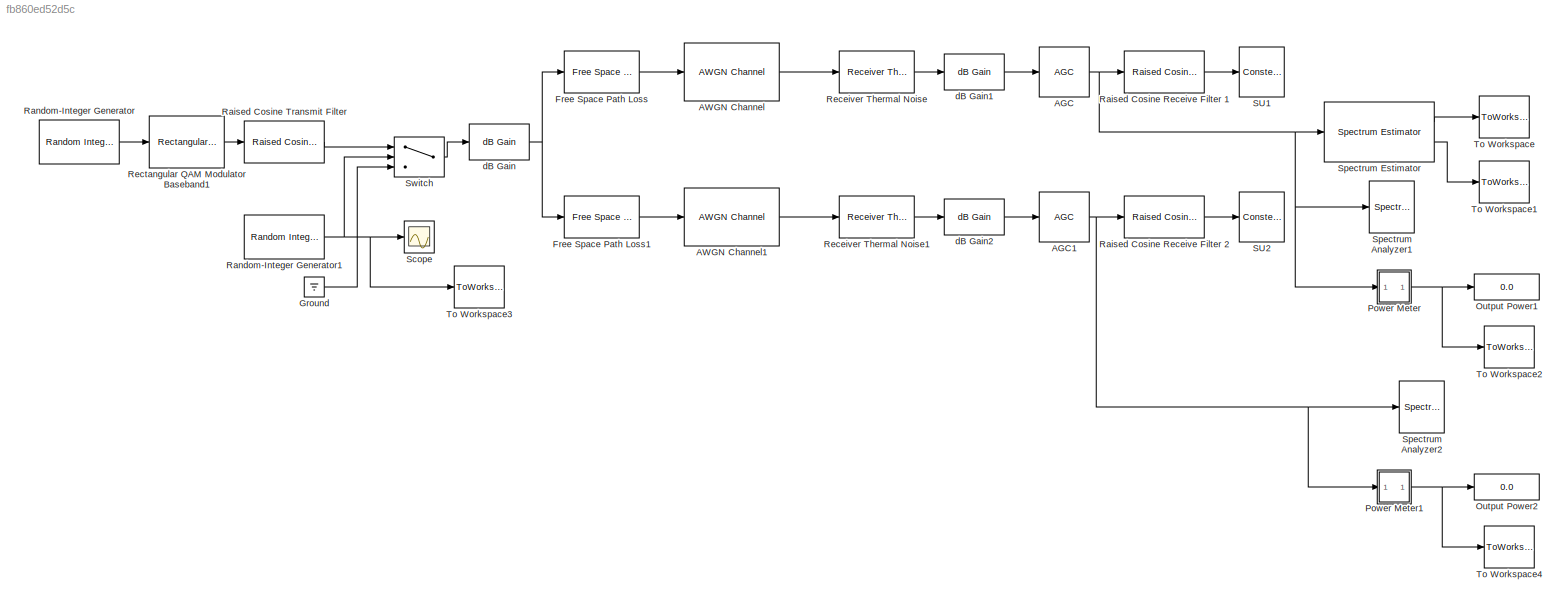
MODEL slx_fb860ed52d5c
KIND model
CONFIG AbsTol = auto
CONFIG EnableMultiTasking = on
CONFIG FixedStep = auto
CONFIG MaxStep = auto
CONFIG MinStep = auto
CONFIG RelTol = 1e-3
CONFIG SampleTimeConstraint = Unconstrained
CONFIG Solver = ode45
CONFIG SolverName = ode45
CONFIG StartTime = 0.0
CONFIG StopTime = inf
BLOCK [Reference] AGC  REF=commrfcorlib/AGC
  Ports = [1, 1]
  SourceBlock = commrfcorlib/AGC
  SourceProductBaseCode = CM
  SourceProductName = Communications System Toolbox
  SourceType = AGC
BLOCK [Reference] AGC1  REF=commrfcorlib/AGC
  Ports = [1, 1]
  SourceBlock = commrfcorlib/AGC
  SourceProductBaseCode = CM
  SourceProductName = Communications System Toolbox
  SourceType = AGC
BLOCK [Reference] AWGN Channel  REF=commchan3/AWGN
Channel
  Ports = [1, 1]
  SourceBlock = commchan3/AWGN\nChannel
  SourceProductBaseCode = CM
  SourceProductName = Communications System Toolbox
  SourceType = AWGN Channel
  UserDataPersistent = on
BLOCK [Reference] AWGN Channel1  REF=commchan3/AWGN
Channel
  Ports = [1, 1]
  SourceBlock = commchan3/AWGN\nChannel
  SourceProductBaseCode = CM
  SourceProductName = Communications System Toolbox
  SourceType = AWGN Channel
  UserDataPersistent = on
BLOCK [Reference] Free Space Path Loss  REF=commrflib2/Free Space
Path Loss
  Ports = [1, 1]
  SourceBlock = commrflib2/Free Space\nPath Loss
  SourceProductBaseCode = CM
  SourceProductName = Communications System Toolbox
  SourceType = Free Space Path Loss
BLOCK [Reference] Free Space Path Loss1  REF=commrflib2/Free Space
Path Loss
  Ports = [1, 1]
  SourceBlock = commrflib2/Free Space\nPath Loss
  SourceProductBaseCode = CM
  SourceProductName = Communications System Toolbox
  SourceType = Free Space Path Loss
BLOCK [Ground] Ground
BLOCK [Display] Output Power1
  Decimation = 1
  Ports = [1]
BLOCK [Display] Output Power2
  Decimation = 1
  Ports = [1]
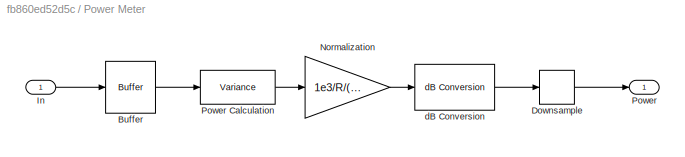
BLOCK [SubSystem] Power Meter
  Ports = [1, 1]
  RequestExecContextInheritance = off
  Variant = off
BLOCK [Buffer] Power Meter/Buffer
  N = buffer_sz
BLOCK [DownSample] Power Meter/Downsample
  N = 10
  RateOptions = Allow multirate processing
  UserDataPersistent = on
BLOCK [Inport] Power Meter/In
  IconDisplay = Port number
BLOCK [Gain] Power Meter/Normalization
  Gain = 1e3/R/(1+PB)
  OutDataTypeStr = Inherit: Inherit via internal rule
  ParamDataTypeStr = Inherit: Inherit via internal rule
  SaturateOnIntegerOverflow = off
BLOCK [Outport] Power Meter/Power
  IconDisplay = Port number
BLOCK [Reference] Power Meter/Power Calculation  REF=dspstat3/Variance
  Ports = [1, 1]
  SourceBlock = dspstat3/Variance
  SourceProductBaseCode = DS
  SourceProductName = DSP System Toolbox
  SourceType = Variance
  UserDataPersistent = on
BLOCK [Reference] Power Meter/dB Conversion  REF=dspmathops/dB Conversion
  Ports = [1, 1]
  SourceBlock = dspmathops/dB Conversion
  SourceProductBaseCode = DS
  SourceProductName = DSP System Toolbox
  SourceType = dB Conversion
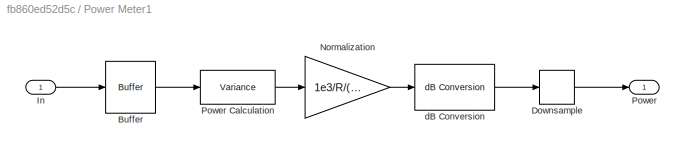
BLOCK [SubSystem] Power Meter1
  Ports = [1, 1]
  RequestExecContextInheritance = off
  Variant = off
BLOCK [Buffer] Power Meter1/Buffer
  N = buffer_sz
BLOCK [DownSample] Power Meter1/Downsample
  N = 10
  RateOptions = Allow multirate processing
  UserDataPersistent = on
BLOCK [Inport] Power Meter1/In
  IconDisplay = Port number
BLOCK [Gain] Power Meter1/Normalization
  Gain = 1e3/R/(1+PB)
  OutDataTypeStr = Inherit: Inherit via internal rule
  ParamDataTypeStr = Inherit: Inherit via internal rule
  SaturateOnIntegerOverflow = off
BLOCK [Outport] Power Meter1/Power
  IconDisplay = Port number
BLOCK [Reference] Power Meter1/Power Calculation  REF=dspstat3/Variance
  Ports = [1, 1]
  SourceBlock = dspstat3/Variance
  SourceProductBaseCode = DS
  SourceProductName = DSP System Toolbox
  SourceType = Variance
  UserDataPersistent = on
BLOCK [Reference] Power Meter1/dB Conversion  REF=dspmathops/dB Conversion
  Ports = [1, 1]
  SourceBlock = dspmathops/dB Conversion
  SourceProductBaseCode = DS
  SourceProductName = DSP System Toolbox
  SourceType = dB Conversion
BLOCK [Reference] Raised Cosine Receive Filter 1  REF=commfilt2/Raised Cosine
Receive Filter
  Ports = [1, 1]
  SourceBlock = commfilt2/Raised Cosine\nReceive Filter
  SourceProductBaseCode = CM
  SourceProductName = Communications System Toolbox
  SourceType = Raised Cosine Receive Filter
BLOCK [Reference] Raised Cosine Receive Filter 2  REF=commfilt2/Raised Cosine
Receive Filter
  Ports = [1, 1]
  SourceBlock = commfilt2/Raised Cosine\nReceive Filter
  SourceProductBaseCode = CM
  SourceProductName = Communications System Toolbox
  SourceType = Raised Cosine Receive Filter
BLOCK [Reference] Raised Cosine Transmit Filter  REF=commfilt2/Raised Cosine
Transmit Filter
  Ports = [1, 1]
  SourceBlock = commfilt2/Raised Cosine\nTransmit Filter
  SourceProductBaseCode = CM
  SourceProductName = Communications System Toolbox
  SourceType = Raised Cosine Transmit Filter
BLOCK [Reference] Random-Integer Generator  REF=commrandsrc2/Random Integer
Generator
  Ports = [0, 1]
  SourceBlock = commrandsrc2/Random Integer\nGenerator
  SourceType = Random Integer Generator
BLOCK [Reference] Random-Integer Generator1  REF=commrandsrc2/Random Integer
Generator
  Ports = [0, 1]
  SourceBlock = commrandsrc2/Random Integer\nGenerator
  SourceType = Random Integer Generator
BLOCK [Reference] Receiver Thermal Noise  REF=commrflib2/Receiver
Thermal Noise
  Ports = [1, 1]
  SourceBlock = commrflib2/Receiver\nThermal Noise
  SourceProductBaseCode = CM
  SourceProductName = Communications System Toolbox
  SourceType = Receiver Thermal Noise
BLOCK [Reference] Receiver Thermal Noise1  REF=commrflib2/Receiver
Thermal Noise
  Ports = [1, 1]
  SourceBlock = commrflib2/Receiver\nThermal Noise
  SourceProductBaseCode = CM
  SourceProductName = Communications System Toolbox
  SourceType = Receiver Thermal Noise
BLOCK [Reference] Rectangular QAM Modulator Baseband1  REF=commdigbbndam3/Rectangular QAM
Modulator
Baseband
  Ports = [1, 1]
  SourceBlock = commdigbbndam3/Rectangular QAM\nModulator\nBaseband
  SourceProductBaseCode = CM
  SourceProductName = Communications System Toolbox
  SourceType = Rectangular QAM Modulator Baseband
BLOCK [ConstellationDiagram] SU1
  Ports = [1]
  ScopeSpecificationString = comm.scopes.ConstellationDiagramBlockCfg('CurrentConfiguration', extmgr.ConfigurationSet(extmgr.Configuration('Core','General UI',true),extmgr.Configuration('Core','Source UI',true),extmgr.Configuration('Sources','WiredSimulink',true),extmgr.Configuration('Sources','Simulink',false),extmgr.Configuration('Sources','SimulinkEvent',false),extmgr.Configuration('Sources','Workspace',false),extmgr.Confi...<+2446ch>
  Tag = ScatterPlot
BLOCK [ConstellationDiagram] SU2
  Ports = [1]
  ScopeSpecificationString = comm.scopes.ConstellationDiagramBlockCfg('CurrentConfiguration', extmgr.ConfigurationSet(extmgr.Configuration('Core','General UI',true),extmgr.Configuration('Core','Source UI',true),extmgr.Configuration('Sources','WiredSimulink',true),extmgr.Configuration('Sources','Simulink',false),extmgr.Configuration('Sources','Streaming',false),extmgr.Configuration('Sources','SimulinkEvent',false),extmgr.Confi...<+2446ch>
  Tag = ScatterPlot
BLOCK [Scope] Scope
  NumInputPorts = 1
  Ports = [1]
  ScopeSpecificationString = Simulink.scopes.TimeScopeBlockCfg('CurrentConfiguration', extmgr.ConfigurationSet(extmgr.Configuration('Core','General UI',true),extmgr.Configuration('Core','Source UI',true),extmgr.Configuration('Sources','WiredSimulink',true,'DataLoggingLimitDataPoints',true,'DataLoggingSaveFormat','Array','DataLoggingDecimation','1','DataLoggingDecimateData',true),extmgr.Configuration('Visuals','Time Domain',tr...<+1754ch>
BLOCK [SpectrumAnalyzer] Spectrum Analyzer1
  NumInputPorts = 1
  Ports = [1]
  ScopeSpecificationString = spbscopes.SpectrumAnalyzerBlockCfg('CurrentConfiguration', extmgr.ConfigurationSet(extmgr.Configuration('Core','General UI',true),extmgr.Configuration('Core','Source UI',true),extmgr.Configuration('Sources','WiredSimulink',true),extmgr.Configuration('Visuals','Spectrum',true,'AxesProperties',struct('Color',{[0 0 0],[0 0 0]},'XColor',{[0.686274509803922 0.686274509803922 0.686274509803922],[0.68627...<+2069ch>
BLOCK [SpectrumAnalyzer] Spectrum Analyzer2
  NumInputPorts = 1
  Ports = [1]
  ScopeSpecificationString = spbscopes.SpectrumAnalyzerBlockCfg('CurrentConfiguration', extmgr.ConfigurationSet(extmgr.Configuration('Core','General UI',true),extmgr.Configuration('Core','Source UI',true),extmgr.Configuration('Sources','WiredSimulink',true),extmgr.Configuration('Visuals','Spectrum',true,'AxesProperties',struct('Color',{[0 0 0],[0 0 0]},'XColor',{[0.686274509803922 0.686274509803922 0.686274509803922],[0.68627...<+2064ch>
BLOCK [Reference] Spectrum Estimator  REF=dspspect3/Spectrum Estimator
  Ports = [1, 2]
  SourceBlock = dspspect3/Spectrum Estimator
  SourceProductBaseCode = DS
  SourceProductName = DSP System Toolbox
  SourceType = Spectrum Estimator
BLOCK [Switch] Switch
  Criteria = u2 > Threshold
  InputSameDT = off
  SaturateOnIntegerOverflow = off
BLOCK [ToWorkspace] To Workspace
  MaxDataPoints = inf
  Ports = [1]
  SampleTime = -1
  Save2DSignal = 2-D array (concatenate along first dimension)
  SaveFormat = Structure With Time
  VariableName = psdSu1
BLOCK [ToWorkspace] To Workspace1
  MaxDataPoints = inf
  Ports = [1]
  SampleTime = -1
  Save2DSignal = 2-D array (concatenate along first dimension)
  SaveFormat = Structure With Time
  VariableName = fSu1
BLOCK [ToWorkspace] To Workspace2
  MaxDataPoints = inf
  Ports = [1]
  SampleTime = -1
  Save2DSignal = 2-D array (concatenate along first dimension)
  VariableName = powSU1
BLOCK [ToWorkspace] To Workspace3
  MaxDataPoints = inf
  Ports = [1]
  SampleTime = -1
  Save2DSignal = 2-D array (concatenate along first dimension)
  SaveFormat = Structure With Time
  VariableName = pu1Act
BLOCK [ToWorkspace] To Workspace4
  MaxDataPoints = inf
  Ports = [1]
  SampleTime = -1
  Save2DSignal = 2-D array (concatenate along first dimension)
  VariableName = powSU2
BLOCK [Reference] dB Gain  REF=dspmathops/dB Gain
  Ports = [1, 1]
  SourceBlock = dspmathops/dB Gain
  SourceProductBaseCode = DS
  SourceProductName = DSP System Toolbox
  SourceType = dB Gain
BLOCK [Reference] dB Gain1  REF=dspmathops/dB Gain
  Ports = [1, 1]
  SourceBlock = dspmathops/dB Gain
  SourceProductBaseCode = DS
  SourceProductName = DSP System Toolbox
  SourceType = dB Gain
BLOCK [Reference] dB Gain2  REF=dspmathops/dB Gain
  Ports = [1, 1]
  SourceBlock = dspmathops/dB Gain
  SourceProductBaseCode = DS
  SourceProductName = DSP System Toolbox
  SourceType = dB Gain
NET AGC1:1 -> Power Meter1:1, Raised Cosine Receive Filter 2:1, Spectrum Analyzer2:1
NET AGC:1 -> Power Meter:1, Raised Cosine Receive Filter 1:1, Spectrum Analyzer1:1, Spectrum Estimator:1
LINE AWGN Channel1:1 -> Receiver Thermal Noise1:1
LINE AWGN Channel:1 -> Receiver Thermal Noise:1
LINE Free Space Path Loss1:1 -> AWGN Channel1:1
LINE Free Space Path Loss:1 -> AWGN Channel:1
LINE Ground:1 -> Switch:3
LINE Power Meter/Buffer:1 -> Power Meter/Power Calculation:1
LINE Power Meter/Downsample:1 -> Power Meter/Power:1
LINE Power Meter/In:1 -> Power Meter/Buffer:1
LINE Power Meter/Normalization:1 -> Power Meter/dB Conversion:1
LINE Power Meter/Power Calculation:1 -> Power Meter/Normalization:1
LINE Power Meter/dB Conversion:1 -> Power Meter/Downsample:1
LINE Power Meter1/Buffer:1 -> Power Meter1/Power Calculation:1
LINE Power Meter1/Downsample:1 -> Power Meter1/Power:1
LINE Power Meter1/In:1 -> Power Meter1/Buffer:1
LINE Power Meter1/Normalization:1 -> Power Meter1/dB Conversion:1
LINE Power Meter1/Power Calculation:1 -> Power Meter1/Normalization:1
LINE Power Meter1/dB Conversion:1 -> Power Meter1/Downsample:1
NET Power Meter1:1 -> Output Power2:1, To Workspace4:1
NET Power Meter:1 -> Output Power1:1, To Workspace2:1
LINE Raised Cosine Receive Filter 1:1 -> SU1:1
LINE Raised Cosine Receive Filter 2:1 -> SU2:1
LINE Raised Cosine Transmit Filter:1 -> Switch:1
NET Random-Integer Generator1:1 -> Scope:1, Switch:2, To Workspace3:1
LINE Random-Integer Generator:1 -> Rectangular QAM Modulator Baseband1:1
LINE Receiver Thermal Noise1:1 -> dB Gain2:1
LINE Receiver Thermal Noise:1 -> dB Gain1:1
LINE Rectangular QAM Modulator Baseband1:1 -> Raised Cosine Transmit Filter:1
LINE Spectrum Estimator:1 -> To Workspace:1
LINE Spectrum Estimator:2 -> To Workspace1:1
LINE Switch:1 -> dB Gain:1
LINE dB Gain1:1 -> AGC:1
LINE dB Gain2:1 -> AGC1:1
NET dB Gain:1 -> Free Space Path Loss1:1, Free Space Path Loss:1
note: NET lines group one-source signal fan-out (src -> all destinations, sorted); 1:1 wires keep LINE
